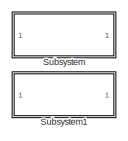
[diagram: root canvas - part 1/3, top center region]
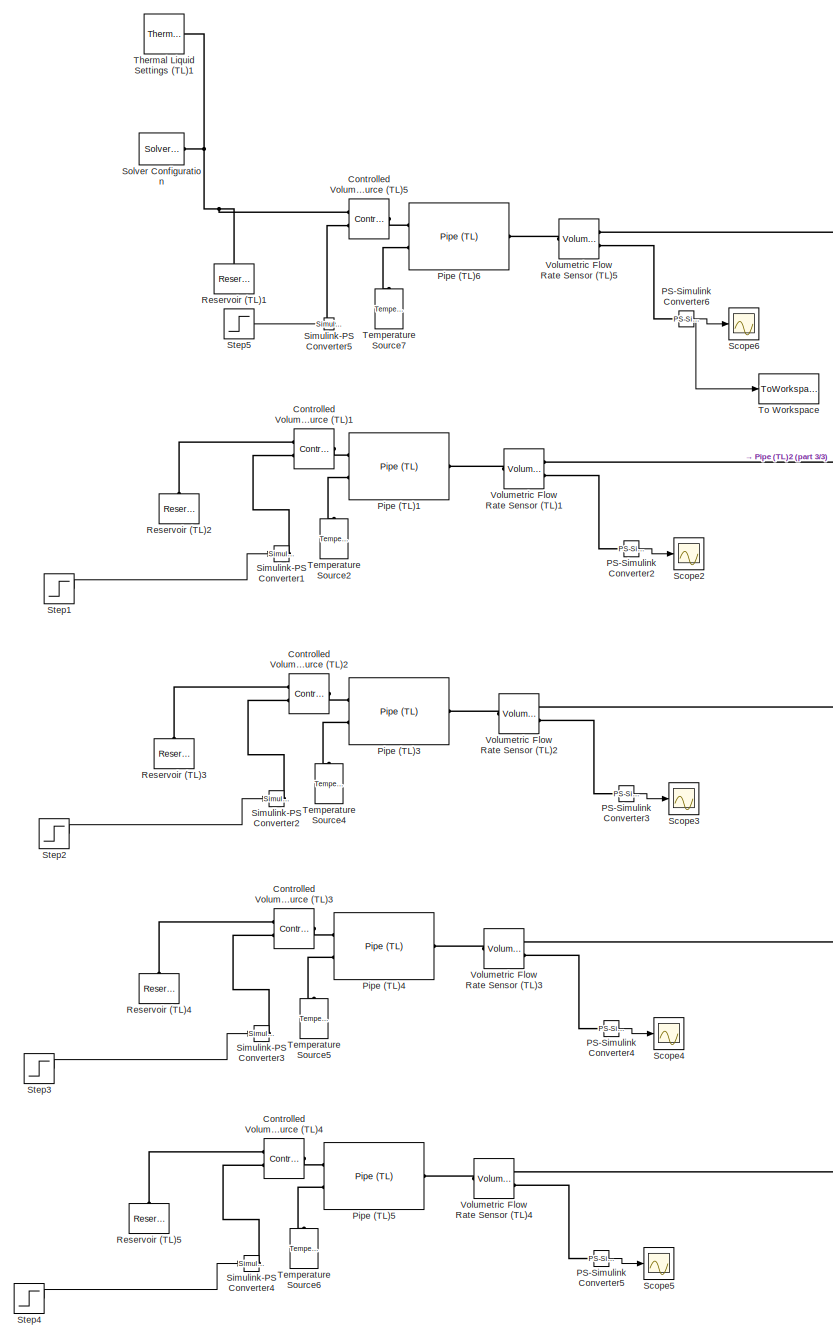
[diagram: root canvas - part 2/3, left side, full height]
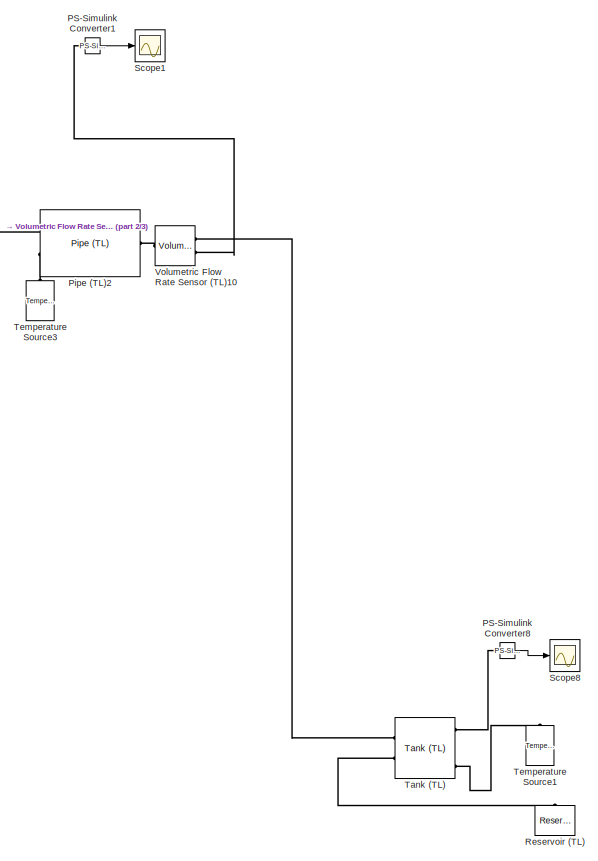
[diagram: root canvas - part 3/3, middle right region]
MODEL slx_643ffa85da0c
KIND model
CONFIG AbsTol = 1.0e-3
CONFIG EnableMultiTasking = on
CONFIG FixedStep = 0.1
CONFIG MaxStep = auto
CONFIG MinStep = auto
CONFIG RelTol = 1.0e-3
CONFIG SampleTimeConstraint = Unconstrained
CONFIG Solver = ode23tb
CONFIG SolverName = ode23tb
CONFIG StartTime = 0
CONFIG StopTime = 10
BLOCK [Reference] Controlled Volumetric Flow Rate Source (TL)1  REF=fl_lib/Thermal Liquid/Sources/Controlled
Volumetric Flow Rate
Source (TL)
  Ports = [0, 0, 0, 0, 0, 2, 1]
  SourceBlock = fl_lib/Thermal Liquid/Sources/Controlled\nVolumetric Flow Rate\nSource (TL)
  SourceProductBaseCode = SS
  SourceProductName = Simscape
  SourceType = Controlled\nVolumetric Flow Rate\nSource (TL)
BLOCK [Reference] Controlled Volumetric Flow Rate Source (TL)2  REF=fl_lib/Thermal Liquid/Sources/Controlled
Volumetric Flow Rate
Source (TL)
  Ports = [0, 0, 0, 0, 0, 2, 1]
  SourceBlock = fl_lib/Thermal Liquid/Sources/Controlled\nVolumetric Flow Rate\nSource (TL)
  SourceProductBaseCode = SS
  SourceProductName = Simscape
  SourceType = Controlled\nVolumetric Flow Rate\nSource (TL)
BLOCK [Reference] Controlled Volumetric Flow Rate Source (TL)3  REF=fl_lib/Thermal Liquid/Sources/Controlled
Volumetric Flow Rate
Source (TL)
  Ports = [0, 0, 0, 0, 0, 2, 1]
  SourceBlock = fl_lib/Thermal Liquid/Sources/Controlled\nVolumetric Flow Rate\nSource (TL)
  SourceProductBaseCode = SS
  SourceProductName = Simscape
  SourceType = Controlled\nVolumetric Flow Rate\nSource (TL)
BLOCK [Reference] Controlled Volumetric Flow Rate Source (TL)4  REF=fl_lib/Thermal Liquid/Sources/Controlled
Volumetric Flow Rate
Source (TL)
  Ports = [0, 0, 0, 0, 0, 2, 1]
  SourceBlock = fl_lib/Thermal Liquid/Sources/Controlled\nVolumetric Flow Rate\nSource (TL)
  SourceProductBaseCode = SS
  SourceProductName = Simscape
  SourceType = Controlled\nVolumetric Flow Rate\nSource (TL)
BLOCK [Reference] Controlled Volumetric Flow Rate Source (TL)5  REF=fl_lib/Thermal Liquid/Sources/Controlled
Volumetric Flow Rate
Source (TL)
  Ports = [0, 0, 0, 0, 0, 2, 1]
  SourceBlock = fl_lib/Thermal Liquid/Sources/Controlled\nVolumetric Flow Rate\nSource (TL)
  SourceProductBaseCode = SS
  SourceProductName = Simscape
  SourceType = Controlled\nVolumetric Flow Rate\nSource (TL)
BLOCK [Reference] PS-Simulink Converter1  REF=nesl_utility/PS-Simulink
Converter
  Ports = [0, 1, 0, 0, 0, 1]
  SourceBlock = nesl_utility/PS-Simulink\nConverter
  SourceProductBaseCode = SS
  SourceProductName = Simscape
  SourceType = PS-Simulink\nConverter
BLOCK [Reference] PS-Simulink Converter2  REF=nesl_utility/PS-Simulink
Converter
  Ports = [0, 1, 0, 0, 0, 1]
  SourceBlock = nesl_utility/PS-Simulink\nConverter
  SourceProductBaseCode = SS
  SourceProductName = Simscape
  SourceType = PS-Simulink\nConverter
BLOCK [Reference] PS-Simulink Converter3  REF=nesl_utility/PS-Simulink
Converter
  Ports = [0, 1, 0, 0, 0, 1]
  SourceBlock = nesl_utility/PS-Simulink\nConverter
  SourceProductBaseCode = SS
  SourceProductName = Simscape
  SourceType = PS-Simulink\nConverter
BLOCK [Reference] PS-Simulink Converter4  REF=nesl_utility/PS-Simulink
Converter
  Ports = [0, 1, 0, 0, 0, 1]
  SourceBlock = nesl_utility/PS-Simulink\nConverter
  SourceProductBaseCode = SS
  SourceProductName = Simscape
  SourceType = PS-Simulink\nConverter
BLOCK [Reference] PS-Simulink Converter5  REF=nesl_utility/PS-Simulink
Converter
  Ports = [0, 1, 0, 0, 0, 1]
  SourceBlock = nesl_utility/PS-Simulink\nConverter
  SourceProductBaseCode = SS
  SourceProductName = Simscape
  SourceType = PS-Simulink\nConverter
BLOCK [Reference] PS-Simulink Converter6  REF=nesl_utility/PS-Simulink
Converter
  Ports = [0, 1, 0, 0, 0, 1]
  SourceBlock = nesl_utility/PS-Simulink\nConverter
  SourceProductBaseCode = SS
  SourceProductName = Simscape
  SourceType = PS-Simulink\nConverter
BLOCK [Reference] PS-Simulink Converter8  REF=nesl_utility/PS-Simulink
Converter
  Ports = [0, 1, 0, 0, 0, 1]
  SourceBlock = nesl_utility/PS-Simulink\nConverter
  SourceProductBaseCode = SS
  SourceProductName = Simscape
  SourceType = PS-Simulink\nConverter
BLOCK [Reference] Pipe (TL)1  REF=fl_lib/Thermal Liquid/Elements/Pipe (TL)
  Ports = [0, 0, 0, 0, 0, 2, 1]
  SourceBlock = fl_lib/Thermal Liquid/Elements/Pipe (TL)
  SourceProductBaseCode = SS
  SourceProductName = Simscape
  SourceType = Pipe (TL)
BLOCK [Reference] Pipe (TL)2  REF=fl_lib/Thermal Liquid/Elements/Pipe (TL)
  Ports = [0, 0, 0, 0, 0, 2, 1]
  SourceBlock = fl_lib/Thermal Liquid/Elements/Pipe (TL)
  SourceProductBaseCode = SS
  SourceProductName = Simscape
  SourceType = Pipe (TL)
BLOCK [Reference] Pipe (TL)3  REF=fl_lib/Thermal Liquid/Elements/Pipe (TL)
  Ports = [0, 0, 0, 0, 0, 2, 1]
  SourceBlock = fl_lib/Thermal Liquid/Elements/Pipe (TL)
  SourceProductBaseCode = SS
  SourceProductName = Simscape
  SourceType = Pipe (TL)
BLOCK [Reference] Pipe (TL)4  REF=fl_lib/Thermal Liquid/Elements/Pipe (TL)
  Ports = [0, 0, 0, 0, 0, 2, 1]
  SourceBlock = fl_lib/Thermal Liquid/Elements/Pipe (TL)
  SourceProductBaseCode = SS
  SourceProductName = Simscape
  SourceType = Pipe (TL)
BLOCK [Reference] Pipe (TL)5  REF=fl_lib/Thermal Liquid/Elements/Pipe (TL)
  Ports = [0, 0, 0, 0, 0, 2, 1]
  SourceBlock = fl_lib/Thermal Liquid/Elements/Pipe (TL)
  SourceProductBaseCode = SS
  SourceProductName = Simscape
  SourceType = Pipe (TL)
BLOCK [Reference] Pipe (TL)6  REF=fl_lib/Thermal Liquid/Elements/Pipe (TL)
  Ports = [0, 0, 0, 0, 0, 2, 1]
  SourceBlock = fl_lib/Thermal Liquid/Elements/Pipe (TL)
  SourceProductBaseCode = SS
  SourceProductName = Simscape
  SourceType = Pipe (TL)
BLOCK [Reference] Reservoir (TL)  REF=fl_lib/Thermal Liquid/Elements/Reservoir (TL)
  Ports = [0, 0, 0, 0, 0, 1]
  SourceBlock = fl_lib/Thermal Liquid/Elements/Reservoir (TL)
  SourceProductBaseCode = SS
  SourceProductName = Simscape
  SourceType = Reservoir (TL)
BLOCK [Reference] Reservoir (TL)1  REF=fl_lib/Thermal Liquid/Elements/Reservoir (TL)
  Ports = [0, 0, 0, 0, 0, 1]
  SourceBlock = fl_lib/Thermal Liquid/Elements/Reservoir (TL)
  SourceProductBaseCode = SS
  SourceProductName = Simscape
  SourceType = Reservoir (TL)
BLOCK [Reference] Reservoir (TL)2  REF=fl_lib/Thermal Liquid/Elements/Reservoir (TL)
  Ports = [0, 0, 0, 0, 0, 1]
  SourceBlock = fl_lib/Thermal Liquid/Elements/Reservoir (TL)
  SourceProductBaseCode = SS
  SourceProductName = Simscape
  SourceType = Reservoir (TL)
BLOCK [Reference] Reservoir (TL)3  REF=fl_lib/Thermal Liquid/Elements/Reservoir (TL)
  Ports = [0, 0, 0, 0, 0, 1]
  SourceBlock = fl_lib/Thermal Liquid/Elements/Reservoir (TL)
  SourceProductBaseCode = SS
  SourceProductName = Simscape
  SourceType = Reservoir (TL)
BLOCK [Reference] Reservoir (TL)4  REF=fl_lib/Thermal Liquid/Elements/Reservoir (TL)
  Ports = [0, 0, 0, 0, 0, 1]
  SourceBlock = fl_lib/Thermal Liquid/Elements/Reservoir (TL)
  SourceProductBaseCode = SS
  SourceProductName = Simscape
  SourceType = Reservoir (TL)
BLOCK [Reference] Reservoir (TL)5  REF=fl_lib/Thermal Liquid/Elements/Reservoir (TL)
  Ports = [0, 0, 0, 0, 0, 1]
  SourceBlock = fl_lib/Thermal Liquid/Elements/Reservoir (TL)
  SourceProductBaseCode = SS
  SourceProductName = Simscape
  SourceType = Reservoir (TL)
BLOCK [Scope] Scope1
  Floating = off
  NumInputPorts = 1
  Ports = [1]
  ScopeSpecificationString = Simulink.scopes.TimeScopeBlockCfg('CurrentConfiguration', extmgr.ConfigurationSet(extmgr.Configuration('Core','General UI',true),extmgr.Configuration('Core','Source UI',true),extmgr.Configuration('Sources','WiredSimulink',true,'DataLoggingVariableName','ScopeData1'),extmgr.Configuration('Visuals','Time Domain',true,'SerializedDisplays',{struct('MinYLimReal','-0.11031','MaxYLimReal','0.01225','YLab...<+1435ch>
BLOCK [Scope] Scope2
  Floating = off
  NumInputPorts = 1
  Ports = [1]
  ScopeSpecificationString = Simulink.scopes.TimeScopeBlockCfg('CurrentConfiguration', extmgr.ConfigurationSet(extmgr.Configuration('Core','General UI',true),extmgr.Configuration('Core','Source UI',true),extmgr.Configuration('Sources','WiredSimulink',true,'DataLoggingVariableName','ScopeData2'),extmgr.Configuration('Visuals','Time Domain',true,'SerializedDisplays',{struct('MinYLimReal','-0.49988','MaxYLimReal','4.49888','YLab...<+1436ch>
BLOCK [Scope] Scope3
  Floating = off
  NumInputPorts = 1
  Ports = [1]
  ScopeSpecificationString = Simulink.scopes.TimeScopeBlockCfg('CurrentConfiguration', extmgr.ConfigurationSet(extmgr.Configuration('Core','General UI',true),extmgr.Configuration('Core','Source UI',true),extmgr.Configuration('Sources','WiredSimulink',true,'DataLoggingVariableName','ScopeData3'),extmgr.Configuration('Visuals','Time Domain',true,'SerializedDisplays',{struct('MinYLimReal','-0.49988','MaxYLimReal','4.49888','YLab...<+1436ch>
BLOCK [Scope] Scope4
  Floating = off
  NumInputPorts = 1
  Ports = [1]
  ScopeSpecificationString = Simulink.scopes.TimeScopeBlockCfg('CurrentConfiguration', extmgr.ConfigurationSet(extmgr.Configuration('Core','General UI',true),extmgr.Configuration('Core','Source UI',true),extmgr.Configuration('Sources','WiredSimulink',true,'DataLoggingVariableName','ScopeData4'),extmgr.Configuration('Visuals','Time Domain',true,'SerializedDisplays',{struct('MinYLimReal','-0.49988','MaxYLimReal','4.49888','YLab...<+1436ch>
BLOCK [Scope] Scope5
  Floating = off
  NumInputPorts = 1
  Ports = [1]
  ScopeSpecificationString = Simulink.scopes.TimeScopeBlockCfg('CurrentConfiguration', extmgr.ConfigurationSet(extmgr.Configuration('Core','General UI',true),extmgr.Configuration('Core','Source UI',true),extmgr.Configuration('Sources','WiredSimulink',true,'DataLoggingVariableName','ScopeData5'),extmgr.Configuration('Visuals','Time Domain',true,'SerializedDisplays',{struct('MinYLimReal','-0.49988','MaxYLimReal','4.49888','YLab...<+1436ch>
BLOCK [Scope] Scope6
  Floating = off
  NumInputPorts = 1
  Ports = [1]
  ScopeSpecificationString = Simulink.scopes.TimeScopeBlockCfg('CurrentConfiguration', extmgr.ConfigurationSet(extmgr.Configuration('Core','General UI',true),extmgr.Configuration('Core','Source UI',true),extmgr.Configuration('Sources','WiredSimulink',true),extmgr.Configuration('Visuals','Time Domain',true,'SerializedDisplays',{struct('MinYLimReal','-12.4996','MaxYLimReal','112.49638','YLabelReal','','MinYLimMag','0.00000','Ma...<+1461ch>
BLOCK [Scope] Scope8
  Floating = off
  NumInputPorts = 1
  Ports = [1]
  ScopeSpecificationString = Simulink.scopes.TimeScopeBlockCfg('CurrentConfiguration', extmgr.ConfigurationSet(extmgr.Configuration('Core','General UI',true),extmgr.Configuration('Core','Source UI',true),extmgr.Configuration('Sources','WiredSimulink',true,'DataLoggingVariableName','ScopeData2'),extmgr.Configuration('Visuals','Time Domain',true,'SerializedDisplays',{struct('MinYLimReal','9.55003','MaxYLimReal','10.06276','YLab...<+1481ch>
BLOCK [Reference] Simulink-PS Converter1  REF=nesl_utility/Simulink-PS
Converter
  Ports = [1, 0, 0, 0, 0, 0, 1]
  SourceBlock = nesl_utility/Simulink-PS\nConverter
  SourceProductBaseCode = SS
  SourceProductName = Simscape
  SourceType = Simulink-PS\nConverter
BLOCK [Reference] Simulink-PS Converter2  REF=nesl_utility/Simulink-PS
Converter
  Ports = [1, 0, 0, 0, 0, 0, 1]
  SourceBlock = nesl_utility/Simulink-PS\nConverter
  SourceProductBaseCode = SS
  SourceProductName = Simscape
  SourceType = Simulink-PS\nConverter
BLOCK [Reference] Simulink-PS Converter3  REF=nesl_utility/Simulink-PS
Converter
  Ports = [1, 0, 0, 0, 0, 0, 1]
  SourceBlock = nesl_utility/Simulink-PS\nConverter
  SourceProductBaseCode = SS
  SourceProductName = Simscape
  SourceType = Simulink-PS\nConverter
BLOCK [Reference] Simulink-PS Converter4  REF=nesl_utility/Simulink-PS
Converter
  Ports = [1, 0, 0, 0, 0, 0, 1]
  SourceBlock = nesl_utility/Simulink-PS\nConverter
  SourceProductBaseCode = SS
  SourceProductName = Simscape
  SourceType = Simulink-PS\nConverter
BLOCK [Reference] Simulink-PS Converter5  REF=nesl_utility/Simulink-PS
Converter
  Ports = [1, 0, 0, 0, 0, 0, 1]
  SourceBlock = nesl_utility/Simulink-PS\nConverter
  SourceProductBaseCode = SS
  SourceProductName = Simscape
  SourceType = Simulink-PS\nConverter
BLOCK [Reference] Solver Configuration  REF=nesl_utility/Solver
Configuration
  Ports = [0, 0, 0, 0, 0, 0, 1]
  SourceBlock = nesl_utility/Solver\nConfiguration
  SourceProductBaseCode = SS
  SourceProductName = Simscape
  SourceType = Solver\nConfiguration
BLOCK [Step] Step1
  After = 10
  SampleTime = 0
  Time = 0.001
BLOCK [Step] Step2
  After = 10
  SampleTime = 0
  Time = 0.001
BLOCK [Step] Step3
  After = 10
  SampleTime = 0
  Time = 0.001
BLOCK [Step] Step4
  After = 10
  SampleTime = 0
  Time = 0.001
BLOCK [Step] Step5
  After = 10
  SampleTime = 0
  Time = 0.02
BLOCK [SubSystem] Subsystem
  OpenFcn = open_system('simscape')
  Ports = []
  RequestExecContextInheritance = off
  ShowPortLabels = none
BLOCK [SubSystem] Subsystem1
  OpenFcn = load_system('fl_lib');\nopen_system('fl_lib/Thermal Liquid');
  Ports = []
  RequestExecContextInheritance = off
  ShowPortLabels = none
BLOCK [Reference] Tank (TL)  REF=SimscapeFluids_lib/Thermal Liquid/Tanks & Accumulators/Tank (TL)
  Ports = [0, 0, 0, 0, 0, 2, 4]
  SourceBlock = SimscapeFluids_lib/Thermal Liquid/Tanks & Accumulators/Tank (TL)
  SourceProductBaseCode = SH
  SourceProductName = Simscape Fluids
  SourceType = Tank (TL)
BLOCK [Reference] Temperature Source1  REF=fl_lib/Thermal/Thermal Sources/Temperature Source
  Ports = [0, 0, 0, 0, 0, 1]
  SourceBlock = fl_lib/Thermal/Thermal Sources/Temperature Source
  SourceProductBaseCode = SS
  SourceProductName = Simscape
  SourceType = Temperature Source
BLOCK [Reference] Temperature Source2  REF=fl_lib/Thermal/Thermal Sources/Temperature Source
  Ports = [0, 0, 0, 0, 0, 1]
  SourceBlock = fl_lib/Thermal/Thermal Sources/Temperature Source
  SourceProductBaseCode = SS
  SourceProductName = Simscape
  SourceType = Temperature Source
BLOCK [Reference] Temperature Source3  REF=fl_lib/Thermal/Thermal Sources/Temperature Source
  Ports = [0, 0, 0, 0, 0, 1]
  SourceBlock = fl_lib/Thermal/Thermal Sources/Temperature Source
  SourceProductBaseCode = SS
  SourceProductName = Simscape
  SourceType = Temperature Source
BLOCK [Reference] Temperature Source4  REF=fl_lib/Thermal/Thermal Sources/Temperature Source
  Ports = [0, 0, 0, 0, 0, 1]
  SourceBlock = fl_lib/Thermal/Thermal Sources/Temperature Source
  SourceProductBaseCode = SS
  SourceProductName = Simscape
  SourceType = Temperature Source
BLOCK [Reference] Temperature Source5  REF=fl_lib/Thermal/Thermal Sources/Temperature Source
  Ports = [0, 0, 0, 0, 0, 1]
  SourceBlock = fl_lib/Thermal/Thermal Sources/Temperature Source
  SourceProductBaseCode = SS
  SourceProductName = Simscape
  SourceType = Temperature Source
BLOCK [Reference] Temperature Source6  REF=fl_lib/Thermal/Thermal Sources/Temperature Source
  Ports = [0, 0, 0, 0, 0, 1]
  SourceBlock = fl_lib/Thermal/Thermal Sources/Temperature Source
  SourceProductBaseCode = SS
  SourceProductName = Simscape
  SourceType = Temperature Source
BLOCK [Reference] Temperature Source7  REF=fl_lib/Thermal/Thermal Sources/Temperature Source
  Ports = [0, 0, 0, 0, 0, 1]
  SourceBlock = fl_lib/Thermal/Thermal Sources/Temperature Source
  SourceProductBaseCode = SS
  SourceProductName = Simscape
  SourceType = Temperature Source
BLOCK [Reference] Thermal Liquid Settings (TL)1  REF=fl_lib/Thermal Liquid/Utilities/Thermal Liquid
Settings (TL)
  Ports = [0, 0, 0, 0, 0, 0, 1]
  SourceBlock = fl_lib/Thermal Liquid/Utilities/Thermal Liquid\nSettings (TL)
  SourceProductBaseCode = SS
  SourceProductName = Simscape
  SourceType = Thermal Liquid\nSettings (TL)
BLOCK [ToWorkspace] To Workspace
  FixptAsFi = on
  MaxDataPoints = inf
  Ports = [1]
  SampleTime = -1
  Save2DSignal = 3-D array (concatenate along third dimension)
  SaveFormat = Timeseries
  VariableName = TT
BLOCK [Reference] Volumetric Flow Rate Sensor (TL)1  REF=fl_lib/Thermal Liquid/Sensors/Volumetric Flow Rate
Sensor (TL)
  Ports = [0, 0, 0, 0, 0, 1, 2]
  SourceBlock = fl_lib/Thermal Liquid/Sensors/Volumetric Flow Rate\nSensor (TL)
  SourceProductBaseCode = SS
  SourceProductName = Simscape
  SourceType = Volumetric Flow Rate\nSensor (TL)
BLOCK [Reference] Volumetric Flow Rate Sensor (TL)10  REF=fl_lib/Thermal Liquid/Sensors/Volumetric Flow Rate
Sensor (TL)
  Ports = [0, 0, 0, 0, 0, 1, 2]
  SourceBlock = fl_lib/Thermal Liquid/Sensors/Volumetric Flow Rate\nSensor (TL)
  SourceProductBaseCode = SS
  SourceProductName = Simscape
  SourceType = Volumetric Flow Rate\nSensor (TL)
BLOCK [Reference] Volumetric Flow Rate Sensor (TL)2  REF=fl_lib/Thermal Liquid/Sensors/Volumetric Flow Rate
Sensor (TL)
  Ports = [0, 0, 0, 0, 0, 1, 2]
  SourceBlock = fl_lib/Thermal Liquid/Sensors/Volumetric Flow Rate\nSensor (TL)
  SourceProductBaseCode = SS
  SourceProductName = Simscape
  SourceType = Volumetric Flow Rate\nSensor (TL)
BLOCK [Reference] Volumetric Flow Rate Sensor (TL)3  REF=fl_lib/Thermal Liquid/Sensors/Volumetric Flow Rate
Sensor (TL)
  Ports = [0, 0, 0, 0, 0, 1, 2]
  SourceBlock = fl_lib/Thermal Liquid/Sensors/Volumetric Flow Rate\nSensor (TL)
  SourceProductBaseCode = SS
  SourceProductName = Simscape
  SourceType = Volumetric Flow Rate\nSensor (TL)
BLOCK [Reference] Volumetric Flow Rate Sensor (TL)4  REF=fl_lib/Thermal Liquid/Sensors/Volumetric Flow Rate
Sensor (TL)
  Ports = [0, 0, 0, 0, 0, 1, 2]
  SourceBlock = fl_lib/Thermal Liquid/Sensors/Volumetric Flow Rate\nSensor (TL)
  SourceProductBaseCode = SS
  SourceProductName = Simscape
  SourceType = Volumetric Flow Rate\nSensor (TL)
BLOCK [Reference] Volumetric Flow Rate Sensor (TL)5  REF=fl_lib/Thermal Liquid/Sensors/Volumetric Flow Rate
Sensor (TL)
  Ports = [0, 0, 0, 0, 0, 1, 2]
  SourceBlock = fl_lib/Thermal Liquid/Sensors/Volumetric Flow Rate\nSensor (TL)
  SourceProductBaseCode = SS
  SourceProductName = Simscape
  SourceType = Volumetric Flow Rate\nSensor (TL)
LINE PS-Simulink Converter1:1 -> Scope1:1
LINE PS-Simulink Converter2:1 -> Scope2:1
LINE PS-Simulink Converter3:1 -> Scope3:1
LINE PS-Simulink Converter4:1 -> Scope4:1
LINE PS-Simulink Converter5:1 -> Scope5:1
NET PS-Simulink Converter6:1 -> Scope6:1, To Workspace:1
LINE PS-Simulink Converter8:1 -> Scope8:1
LINE Step1:1 -> Simulink-PS Converter1:1
LINE Step2:1 -> Simulink-PS Converter2:1
LINE Step3:1 -> Simulink-PS Converter3:1
LINE Step4:1 -> Simulink-PS Converter4:1
LINE Step5:1 -> Simulink-PS Converter5:1
PLINE Controlled Volumetric Flow Rate Source (TL)1:LConn1 -- Reservoir (TL)2:LConn1
PLINE Controlled Volumetric Flow Rate Source (TL)1:LConn2 -- Simulink-PS Converter1:RConn1
PLINE Controlled Volumetric Flow Rate Source (TL)1:RConn1 -- Pipe (TL)1:LConn1
PLINE Controlled Volumetric Flow Rate Source (TL)2:LConn1 -- Reservoir (TL)3:LConn1
PLINE Controlled Volumetric Flow Rate Source (TL)2:LConn2 -- Simulink-PS Converter2:RConn1
PLINE Controlled Volumetric Flow Rate Source (TL)2:RConn1 -- Pipe (TL)3:LConn1
PLINE Controlled Volumetric Flow Rate Source (TL)3:LConn1 -- Reservoir (TL)4:LConn1
PLINE Controlled Volumetric Flow Rate Source (TL)3:LConn2 -- Simulink-PS Converter3:RConn1
PLINE Controlled Volumetric Flow Rate Source (TL)3:RConn1 -- Pipe (TL)4:LConn1
PLINE Controlled Volumetric Flow Rate Source (TL)4:LConn1 -- Reservoir (TL)5:LConn1
PLINE Controlled Volumetric Flow Rate Source (TL)4:LConn2 -- Simulink-PS Converter4:RConn1
PLINE Controlled Volumetric Flow Rate Source (TL)4:RConn1 -- Pipe (TL)5:LConn1
PNET net1: Controlled Volumetric Flow Rate Source (TL)5:LConn1 -- Reservoir (TL)1:LConn1 -- Solver Configuration:RConn1 -- Thermal Liquid Settings (TL)1:RConn1
PLINE Controlled Volumetric Flow Rate Source (TL)5:LConn2 -- Simulink-PS Converter5:RConn1
PLINE Controlled Volumetric Flow Rate Source (TL)5:RConn1 -- Pipe (TL)6:LConn1
PLINE PS-Simulink Converter1:LConn1 -- Volumetric Flow Rate Sensor (TL)10:RConn2
PLINE PS-Simulink Converter2:LConn1 -- Volumetric Flow Rate Sensor (TL)1:RConn2
PLINE PS-Simulink Converter3:LConn1 -- Volumetric Flow Rate Sensor (TL)2:RConn2
PLINE PS-Simulink Converter4:LConn1 -- Volumetric Flow Rate Sensor (TL)3:RConn2
PLINE PS-Simulink Converter5:LConn1 -- Volumetric Flow Rate Sensor (TL)4:RConn2
PLINE PS-Simulink Converter6:LConn1 -- Volumetric Flow Rate Sensor (TL)5:RConn2
PLINE PS-Simulink Converter8:LConn1 -- Tank (TL):RConn1
PLINE Pipe (TL)1:LConn2 -- Temperature Source2:LConn1
PLINE Pipe (TL)1:RConn1 -- Volumetric Flow Rate Sensor (TL)1:LConn1
PNET net2: Pipe (TL)2:LConn1 -- Volumetric Flow Rate Sensor (TL)1:RConn1 -- Volumetric Flow Rate Sensor (TL)2:RConn1 -- Volumetric Flow Rate Sensor (TL)3:RConn1 -- Volumetric Flow Rate Sensor (TL)4:RConn1 -- Volumetric Flow Rate Sensor (TL)5:RConn1
PLINE Pipe (TL)2:LConn2 -- Temperature Source3:LConn1
PLINE Pipe (TL)2:RConn1 -- Volumetric Flow Rate Sensor (TL)10:LConn1
PLINE Pipe (TL)3:LConn2 -- Temperature Source4:LConn1
PLINE Pipe (TL)3:RConn1 -- Volumetric Flow Rate Sensor (TL)2:LConn1
PLINE Pipe (TL)4:LConn2 -- Temperature Source5:LConn1
PLINE Pipe (TL)4:RConn1 -- Volumetric Flow Rate Sensor (TL)3:LConn1
PLINE Pipe (TL)5:LConn2 -- Temperature Source6:LConn1
PLINE Pipe (TL)5:RConn1 -- Volumetric Flow Rate Sensor (TL)4:LConn1
PLINE Pipe (TL)6:LConn2 -- Temperature Source7:LConn1
PLINE Pipe (TL)6:RConn1 -- Volumetric Flow Rate Sensor (TL)5:LConn1
PLINE Reservoir (TL):LConn1 -- Tank (TL):LConn2
PLINE Tank (TL):LConn1 -- Volumetric Flow Rate Sensor (TL)10:RConn1
PLINE Tank (TL):RConn4 -- Temperature Source1:LConn1
note: NET lines group one-source signal fan-out (src -> all destinations, sorted); 1:1 wires keep LINE; PNET lines group multi-terminal physical nets as a canonical sorted terminal list (undirected conserving connections); 2-terminal nets keep the pairwise PLINE form
